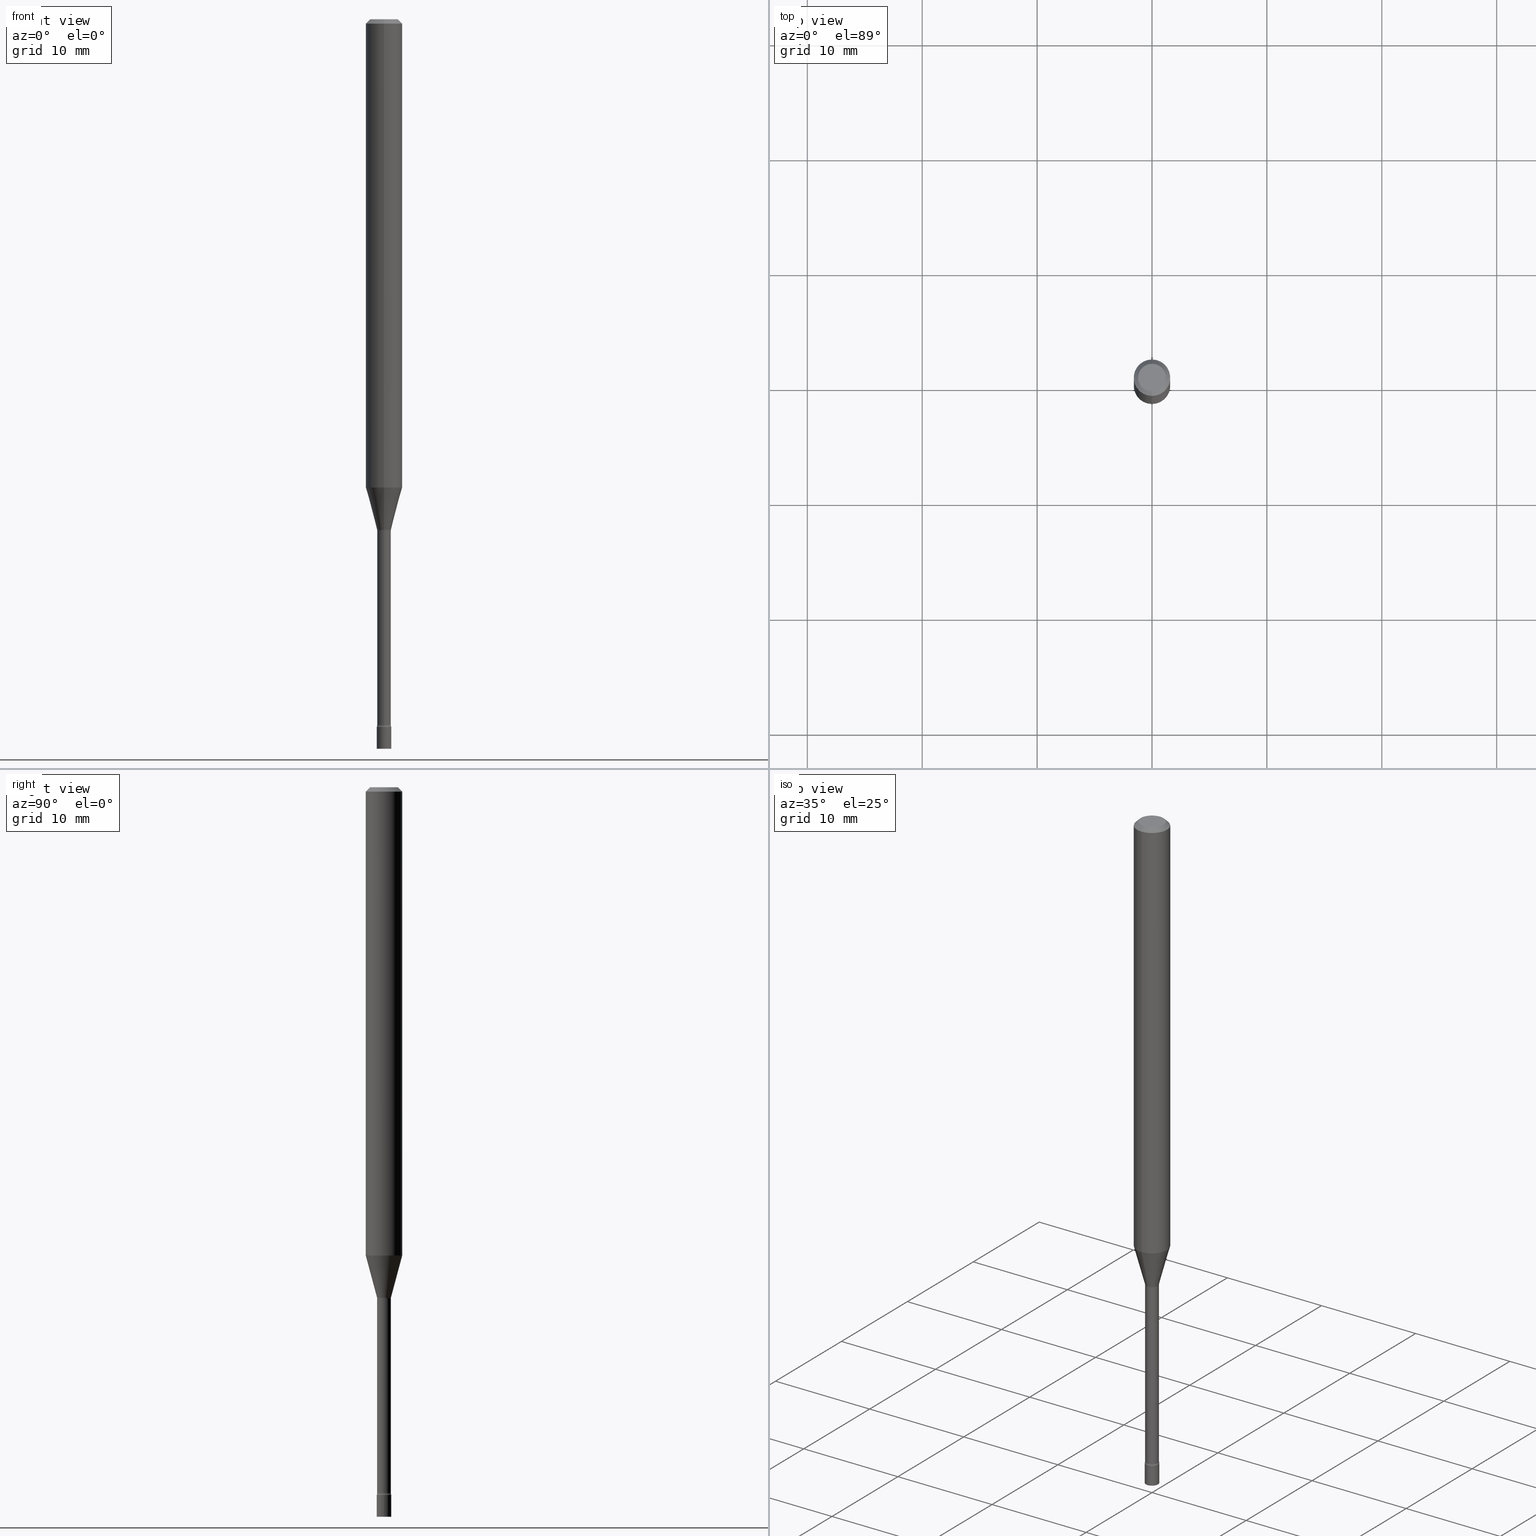
[diagram: canonical four-view strip — front | top / right | iso, engineering-drawing reading convention]
A machine part, canonical four-view strip (front | top / right | iso — engineering-drawing reading convention). The complete STEP part file that produces these views, byte-faithful:
ISO-10303-21;
HEADER;
FILE_DESCRIPTION (( 'STEP AP203' ),
    '1' );
FILE_NAME ('03626.STEP',
    '2024-03-08T22:11:53',
    ( '' ),
    ( '' ),
    'SwSTEP 2.0',
    'SolidWorks 2023',
    '' );
FILE_SCHEMA (( 'CONFIG_CONTROL_DESIGN' ));
ENDSEC;

DATA;
#1 = EDGE_CURVE ( 'NONE', #455, #389, #294, .T. ) ;
#2 = DIRECTION ( 'NONE',  ( -2.445459586643511658E-29, 3.491494541751496264E-15, 1.000000000000000000 ) ) ;
#3 = CIRCLE ( 'NONE', #73, 0.02500000000000000139 ) ;
#4 = DIRECTION ( 'NONE',  ( -2.445459586643511658E-29, 3.491494541751496264E-15, 1.000000000000000000 ) ) ;
#5 = DIRECTION ( 'NONE',  ( -2.445459586643511658E-29, 3.491494541751496264E-15, 1.000000000000000000 ) ) ;
#6 = CC_DESIGN_PERSON_AND_ORGANIZATION_ASSIGNMENT ( #111, #76, ( #307 ) ) ;
#7 = CARTESIAN_POINT ( 'NONE',  ( 4.274889566835328167E-29, -6.103455428466982164E-15, -1.748092501787273267 ) ) ;
#8 = AXIS2_PLACEMENT_3D ( 'NONE', #292, #456, #131 ) ;
#9 = CARTESIAN_POINT ( 'NONE',  ( 1.745740669422159556E-16, 0.02499999999999153247, -2.425000000000000266 ) ) ;
#10 = ORIENTED_EDGE ( 'NONE', *, *, #1, .F. ) ;
#11 = ORIENTED_EDGE ( 'NONE', *, *, #124, .F. ) ;
#12 = MECHANICAL_CONTEXT ( 'NONE', #408, 'mechanical' ) ;
#13 = ORIENTED_EDGE ( 'NONE', *, *, #200, .T. ) ;
#14 = DIRECTION ( 'NONE',  ( 2.445459586643511658E-29, -3.491494541751495870E-15, -1.000000000000000000 ) ) ;
#15 =( GEOMETRIC_REPRESENTATION_CONTEXT ( 3 ) GLOBAL_UNCERTAINTY_ASSIGNED_CONTEXT ( ( #354 ) ) GLOBAL_UNIT_ASSIGNED_CONTEXT ( ( #127, #284, #372 ) ) REPRESENTATION_CONTEXT ( 'NONE', 'WORKASPACE' ) );
#16 = CIRCLE ( 'NONE', #319, 0.02350000000000000352 ) ;
#17 = DIRECTION ( 'NONE',  ( -6.982962677686265133E-15, -1.000000000000000000, 0.000000000000000000 ) ) ;
#18 = EDGE_LOOP ( 'NONE', ( #504, #330, #416, #226 ) ) ;
#19 = FACE_OUTER_BOUND ( 'NONE', #99, .T. ) ;
#20 = EDGE_CURVE ( 'NONE', #321, #471, #44, .T. ) ;
#21 = VERTEX_POINT ( 'NONE', #28 ) ;
#22 = VERTEX_POINT ( 'NONE', #332 ) ;
#23 = CARTESIAN_POINT ( 'NONE',  ( 6.113672015462842613E-29, -8.728703347107864943E-15, -2.500000000000000000 ) ) ;
#24 = DIRECTION ( 'NONE',  ( 1.000000000000000000, -6.982962677686265922E-15, 4.876176775795935793E-29 ) ) ;
#25 = CARTESIAN_POINT ( 'NONE',  ( 4.440892098501020592E-16, 0.06249999999999995143, -0.01500000000000024751 ) ) ;
#26 = APPROVAL_ROLE ( '' ) ;
#27 = DIRECTION ( 'NONE',  ( 7.105427357601001859E-15, 1.000000000000000000, 0.000000000000000000 ) ) ;
#28 = CARTESIAN_POINT ( 'NONE',  ( -1.640996229255844069E-16, -0.02350000000000612016, -1.751974787463811190 ) ) ;
#29 = CIRCLE ( 'NONE', #212, 0.06250000000000000000 ) ;
#30 = CYLINDRICAL_SURFACE ( 'NONE', #236, 0.02500000000000000139 ) ;
#31 = CARTESIAN_POINT ( 'NONE',  ( 7.070626702492099280E-46, -1.009505725359276248E-31, -2.891328378972236202E-17 ) ) ;
#32 = PERSON_AND_ORGANIZATION ( #43, #118 ) ;
#33 = CARTESIAN_POINT ( 'NONE',  ( 3.923617679042957969E-29, -5.601928482122645795E-15, -1.604450018504814279 ) ) ;
#34 = DATE_AND_TIME ( #183, #328 ) ;
#35 = AXIS2_PLACEMENT_3D ( 'NONE', #412, #58, #220 ) ;
#36 = DATE_TIME_ROLE ( 'creation_date' ) ;
#37 = AXIS2_PLACEMENT_3D ( 'NONE', #357, #4, #192 ) ;
#38 = DIRECTION ( 'NONE',  ( -6.982962677686265922E-15, -1.000000000000000000, 0.000000000000000000 ) ) ;
#39 = EDGE_CURVE ( 'NONE', #337, #21, #467, .T. ) ;
#40 = DIRECTION ( 'NONE',  ( 7.105427357600997914E-15, 1.000000000000000000, 0.000000000000000000 ) ) ;
#41 = CIRCLE ( 'NONE', #35, 0.04749999999999999362 ) ;
#42 = CC_DESIGN_SECURITY_CLASSIFICATION ( #452, ( #307 ) ) ;
#43 = PERSON ( 'UNSPECIFIED', 'UNSPECIFIED', 'UNSPECIFIED', ('UNSPECIFIED'), ('UNSPECIFIED'), ('UNSPECIFIED') ) ;
#44 = CIRCLE ( 'NONE', #287, 0.02500000000000000139 ) ;
#45 = EDGE_LOOP ( 'NONE', ( #100, #462, #514, #249 ) ) ;
#46 = CARTESIAN_POINT ( 'NONE',  ( 0.000000000000000000, 0.000000000000000000, 0.000000000000000000 ) ) ;
#47 = EDGE_CURVE ( 'NONE', #260, #337, #80, .T. ) ;
#48 = CYLINDRICAL_SURFACE ( 'NONE', #500, 0.02350000000000004516 ) ;
#49 = AXIS2_PLACEMENT_3D ( 'NONE', #400, #120, #162 ) ;
#50 = AXIS2_PLACEMENT_3D ( 'NONE', #369, #250, #381 ) ;
#51 = CARTESIAN_POINT ( 'NONE',  ( 5.930261854998957144E-29, -8.466842246694628363E-15, -2.425000000000000266 ) ) ;
#52 = ORIENTED_EDGE ( 'NONE', *, *, #39, .F. ) ;
#53 = CARTESIAN_POINT ( 'NONE',  ( 0.000000000000000000, 0.000000000000000000, 0.000000000000000000 ) ) ;
#54 = ORIENTED_EDGE ( 'NONE', *, *, #152, .F. ) ;
#55 = CARTESIAN_POINT ( 'NONE',  ( 4.284383539561106192E-29, -6.117010407716134379E-15, -1.751974787463811190 ) ) ;
#56 = EDGE_CURVE ( 'NONE', #411, #379, #166, .T. ) ;
#57 = ORIENTED_EDGE ( 'NONE', *, *, #85, .F. ) ;
#58 = DIRECTION ( 'NONE',  ( -2.445459586643511658E-29, 3.491494541751496264E-15, 1.000000000000000000 ) ) ;
#59 = AXIS2_PLACEMENT_3D ( 'NONE', #178, #334, #505 ) ;
#60 = VECTOR ( 'NONE', #469, 39.37007874015748143 ) ;
#61 = LINE ( 'NONE', #113, #103 ) ;
#62 = ORIENTED_EDGE ( 'NONE', *, *, #198, .T. ) ;
#63 = CARTESIAN_POINT ( 'NONE',  ( 6.113672015462842613E-29, -8.728703347107864943E-15, -2.500000000000000000 ) ) ;
#64 = CARTESIAN_POINT ( 'NONE',  ( 3.840629472727447874E-16, 0.04749999999999999362, -1.947592745229184365E-16 ) ) ;
#65 = CARTESIAN_POINT ( 'NONE',  ( 0.000000000000000000, 0.000000000000000000, 0.000000000000000000 ) ) ;
#66 = ORIENTED_EDGE ( 'NONE', *, *, #290, .F. ) ;
#67 = DATE_AND_TIME ( #147, #155 ) ;
#68 = ORIENTED_EDGE ( 'NONE', *, *, #276, .T. ) ;
#69 = CYLINDRICAL_SURFACE ( 'NONE', #79, 0.06250000000000000000 ) ;
#70 = VERTEX_POINT ( 'NONE', #25 ) ;
#71 = PRODUCT_DEFINITION ( 'UNKNOWN', '', #307, #243 ) ;
#72 = CARTESIAN_POINT ( 'NONE',  ( -4.287811248607203282E-16, -0.06250000000000005551, -0.01499999999999981209 ) ) ;
#73 = AXIS2_PLACEMENT_3D ( 'NONE', #51, #322, #460 ) ;
#74 = DIRECTION ( 'NONE',  ( -6.982962677686265133E-15, -1.000000000000000000, 0.000000000000000000 ) ) ;
#75 = AXIS2_PLACEMENT_3D ( 'NONE', #340, #517, #149 ) ;
#76 = PERSON_AND_ORGANIZATION_ROLE ( 'creator' ) ;
#77 = DIRECTION ( 'NONE',  ( -6.982962677686266711E-15, -1.000000000000000000, 3.491494541751496659E-15 ) ) ;
#78 = PERSON_AND_ORGANIZATION ( #43, #118 ) ;
#79 = AXIS2_PLACEMENT_3D ( 'NONE', #229, #98, #174 ) ;
#80 = CIRCLE ( 'NONE', #150, 0.02401111260566398883 ) ;
#81 = DIRECTION ( 'NONE',  ( 1.000000000000000000, -7.105427357601001070E-15, 4.926315670231076594E-29 ) ) ;
#82 = CC_DESIGN_PERSON_AND_ORGANIZATION_ASSIGNMENT ( #117, #434, ( #452 ) ) ;
#83 = DIRECTION ( 'NONE',  ( -2.445459586643511658E-29, 3.491494541751496264E-15, 1.000000000000000000 ) ) ;
#84 = DIRECTION ( 'NONE',  ( -6.982962677686265133E-15, -1.000000000000000000, 0.000000000000000000 ) ) ;
#85 = EDGE_CURVE ( 'NONE', #368, #262, #329, .T. ) ;
#86 = DIRECTION ( 'NONE',  ( -6.982962677686265922E-15, -1.000000000000000000, 3.491494541751495870E-15 ) ) ;
#87 = CARTESIAN_POINT ( 'NONE',  ( 5.914250230797479692E-29, -8.444045655943250067E-15, -2.418461651584689509 ) ) ;
#88 = CARTESIAN_POINT ( 'NONE',  ( 4.440892098500625669E-16, 0.06250000000000000000, -2.182184088594685165E-16 ) ) ;
#89 = LOCAL_TIME ( 17, 11, 53.00000000000000000, #391 ) ;
#90 = ORIENTED_EDGE ( 'NONE', *, *, #320, .T. ) ;
#91 = VECTOR ( 'NONE', #296, 39.37007874015748143 ) ;
#92 = APPLICATION_PROTOCOL_DEFINITION ( 'international standard', 'config_control_design', 1994, #408 ) ;
#93 = ADVANCED_FACE ( 'NONE', ( #350 ), #399, .F. ) ;
#94 = EDGE_LOOP ( 'NONE', ( #450, #68 ) ) ;
#95 = DIRECTION ( 'NONE',  ( -2.445459586643511658E-29, 3.491494541751495870E-15, 1.000000000000000000 ) ) ;
#96 =( LENGTH_UNIT ( ) NAMED_UNIT ( * ) SI_UNIT ( $, .METRE. ) );
#97 = ORIENTED_EDGE ( 'NONE', *, *, #56, .F. ) ;
#98 = DIRECTION ( 'NONE',  ( -2.445459586643511658E-29, 3.491494541751496264E-15, 1.000000000000000000 ) ) ;
#99 = EDGE_LOOP ( 'NONE', ( #323, #374, #468, #378 ) ) ;
#100 = ORIENTED_EDGE ( 'NONE', *, *, #198, .F. ) ;
#101 = CARTESIAN_POINT ( 'NONE',  ( 5.930261854998957144E-29, -8.466842246694628363E-15, -2.425000000000000266 ) ) ;
#102 = CIRCLE ( 'NONE', #8, 0.06250000000000000000 ) ;
#103 = VECTOR ( 'NONE', #503, 39.37007874015748143 ) ;
#104 = ORIENTED_EDGE ( 'NONE', *, *, #206, .T. ) ;
#105 = ORIENTED_EDGE ( 'NONE', *, *, #283, .T. ) ;
#106 = DIRECTION ( 'NONE',  ( 1.000000000000000000, -7.105427357601001070E-15, 4.926315670231076594E-29 ) ) ;
#107 = EDGE_LOOP ( 'NONE', ( #11, #295, #490, #161 ) ) ;
#108 = CARTESIAN_POINT ( 'NONE',  ( 3.073492131224338832E-16, 0.02401111260565788608, -1.748092501787273267 ) ) ;
#109 = EDGE_CURVE ( 'NONE', #337, #455, #306, .T. ) ;
#110 = DIRECTION ( 'NONE',  ( -6.982962677686265133E-15, -1.000000000000000000, 0.000000000000000000 ) ) ;
#111 = PERSON_AND_ORGANIZATION ( #43, #118 ) ;
#112 = CIRCLE ( 'NONE', #257, 0.02401111260566398883 ) ;
#113 = CARTESIAN_POINT ( 'NONE',  ( 0.02500000000000000139, -1.745740669421566924E-16, 1.219044193948984123E-30 ) ) ;
#114 = VECTOR ( 'NONE', #256, 39.37007874015748143 ) ;
#115 = APPROVAL_STATUS ( 'not_yet_approved' ) ;
#116 = EDGE_CURVE ( 'NONE', #173, #130, #61, .T. ) ;
#117 = PERSON_AND_ORGANIZATION ( #43, #118 ) ;
#118 = ORGANIZATION ( 'UNSPECIFIED', 'UNSPECIFIED', '' ) ;
#119 = AXIS2_PLACEMENT_3D ( 'NONE', #265, #512, #225 ) ;
#120 = DIRECTION ( 'NONE',  ( -1.000000000000000000, 6.982962677686265922E-15, -4.883557194083112340E-29 ) ) ;
#121 = ADVANCED_FACE ( 'NONE', ( #235 ), #137, .T. ) ;
#122 = APPROVAL_DATE_TIME ( #238, #213 ) ;
#123 = CLOSED_SHELL ( 'NONE', ( #457, #376, #351, #208, #486, #475, #154, #254, #237, #241, #151, #93, #415, #454 ) ) ;
#124 = EDGE_CURVE ( 'NONE', #260, #366, #144, .T. ) ;
#125 = AXIS2_PLACEMENT_3D ( 'NONE', #23, #345, #184 ) ;
#126 = FACE_OUTER_BOUND ( 'NONE', #300, .T. ) ;
#127 =( CONVERSION_BASED_UNIT ( 'INCH', #339 ) LENGTH_UNIT ( ) NAMED_UNIT ( #406 ) );
#128 = ORIENTED_EDGE ( 'NONE', *, *, #216, .T. ) ;
#129 = CC_DESIGN_APPROVAL ( #397, ( #307 ) ) ;
#130 = VERTEX_POINT ( 'NONE', #201 ) ;
#131 = DIRECTION ( 'NONE',  ( -6.982962677686265922E-15, -1.000000000000000000, 4.370956789862821150E-15 ) ) ;
#132 = AXIS2_PLACEMENT_3D ( 'NONE', #199, #81, #40 ) ;
#133 = ORIENTED_EDGE ( 'NONE', *, *, #20, .F. ) ;
#134 = DIRECTION ( 'NONE',  ( 1.000000000000000000, -6.982962677686254878E-15, 0.000000000000000000 ) ) ;
#135 = EDGE_CURVE ( 'NONE', #70, #389, #244, .T. ) ;
#136 = DIRECTION ( 'NONE',  ( -2.445459586643511658E-29, 3.491494541751496264E-15, 1.000000000000000000 ) ) ;
#137 = PLANE ( 'NONE',  #420 ) ;
#138 = EDGE_LOOP ( 'NONE', ( #387, #90 ) ) ;
#139 = CYLINDRICAL_SURFACE ( 'NONE', #59, 0.02500000000000000139 ) ;
#140 = VERTEX_POINT ( 'NONE', #242 ) ;
#141 = ORIENTED_EDGE ( 'NONE', *, *, #272, .T. ) ;
#142 = DIRECTION ( 'NONE',  ( 6.982962677686265922E-15, 1.000000000000000000, -3.491494541751495870E-15 ) ) ;
#143 = VECTOR ( 'NONE', #311, 39.37007874015748143 ) ;
#144 = CIRCLE ( 'NONE', #132, 0.01500000000000002720 ) ;
#145 = APPLICATION_CONTEXT ( 'configuration controlled 3d designs of mechanical parts and assemblies' ) ;
#146 = EDGE_LOOP ( 'NONE', ( #336, #333, #128, #52 ) ) ;
#147 = CALENDAR_DATE ( 2024, 8, 3 ) ;
#148 = CARTESIAN_POINT ( 'NONE',  ( 5.914272527905344176E-29, -8.444013725215716224E-15, -2.418461651584689509 ) ) ;
#149 = DIRECTION ( 'NONE',  ( -6.982962677686266711E-15, -1.000000000000000000, 3.491494541751495870E-15 ) ) ;
#150 = AXIS2_PLACEMENT_3D ( 'NONE', #423, #185, #110 ) ;
#151 = ADVANCED_FACE ( 'NONE', ( #126 ), #281, .F. ) ;
#152 = EDGE_CURVE ( 'NONE', #21, #366, #16, .T. ) ;
#153 = DIRECTION ( 'NONE',  ( -2.445459586643511658E-29, 3.491494541751496264E-15, 1.000000000000000000 ) ) ;
#154 = ADVANCED_FACE ( 'NONE', ( #439 ), #393, .T. ) ;
#155 = LOCAL_TIME ( 17, 11, 53.00000000000000000, #261 ) ;
#156 = FACE_OUTER_BOUND ( 'NONE', #304, .T. ) ;
#157 = AXIS2_PLACEMENT_3D ( 'NONE', #289, #14, #142 ) ;
#158 = EDGE_LOOP ( 'NONE', ( #248, #13, #269, #507 ) ) ;
#159 = PERSON_AND_ORGANIZATION_ROLE ( 'design_owner' ) ;
#160 = CALENDAR_DATE ( 2024, 8, 3 ) ;
#161 = ORIENTED_EDGE ( 'NONE', *, *, #152, .T. ) ;
#162 = DIRECTION ( 'NONE',  ( -6.982962677686266711E-15, -1.000000000000000000, 0.000000000000000000 ) ) ;
#163 = EDGE_CURVE ( 'NONE', #455, #443, #29, .T. ) ;
#164 = DIRECTION ( 'NONE',  ( 4.937700262164548042E-15, 0.7071067811865451302, -0.7071067811865499042 ) ) ;
#165 = AXIS2_PLACEMENT_3D ( 'NONE', #508, #459, #422 ) ;
#166 = CIRCLE ( 'NONE', #194, 0.02350000000000008679 ) ;
#167 = FACE_OUTER_BOUND ( 'NONE', #18, .T. ) ;
#168 = ORIENTED_EDGE ( 'NONE', *, *, #355, .T. ) ;
#169 = ORIENTED_EDGE ( 'NONE', *, *, #200, .F. ) ;
#170 = CC_DESIGN_DATE_AND_TIME_ASSIGNMENT ( #67, #36, ( #71 ) ) ;
#171 = DIRECTION ( 'NONE',  ( -6.982962677686265133E-15, -1.000000000000000000, 0.000000000000000000 ) ) ;
#172 = TOROIDAL_SURFACE ( 'NONE', #494, 0.03850000000000000644, 0.01500000000000002373 ) ;
#173 = VERTEX_POINT ( 'NONE', #274 ) ;
#174 = DIRECTION ( 'NONE',  ( -6.982962677686265922E-15, -1.000000000000000000, 3.491494541751496264E-15 ) ) ;
#175 = CLOSED_SHELL ( 'NONE', ( #325, #516, #310, #121 ) ) ;
#176 = ORIENTED_EDGE ( 'NONE', *, *, #479, .T. ) ;
#177 = ORIENTED_EDGE ( 'NONE', *, *, #431, .T. ) ;
#178 = CARTESIAN_POINT ( 'NONE',  ( 0.000000000000000000, 0.000000000000000000, 0.000000000000000000 ) ) ;
#179 = ORIENTED_EDGE ( 'NONE', *, *, #431, .F. ) ;
#180 = EDGE_LOOP ( 'NONE', ( #498, #62, #510, #10 ) ) ;
#181 = FACE_OUTER_BOUND ( 'NONE', #361, .T. ) ;
#182 = FACE_OUTER_BOUND ( 'NONE', #94, .T. ) ;
#183 = CALENDAR_DATE ( 2024, 8, 3 ) ;
#184 = DIRECTION ( 'NONE',  ( 1.000000000000000000, -6.982962677686254878E-15, 0.000000000000000000 ) ) ;
#185 = DIRECTION ( 'NONE',  ( -2.445459586643511658E-29, 3.491494541751496264E-15, 1.000000000000000000 ) ) ;
#186 = LINE ( 'NONE', #394, #442 ) ;
#187 = FACE_OUTER_BOUND ( 'NONE', #224, .T. ) ;
#188 = EDGE_CURVE ( 'NONE', #140, #22, #437, .T. ) ;
#189 = DIRECTION ( 'NONE',  ( -2.445459586643511658E-29, 3.491494541751496264E-15, 1.000000000000000000 ) ) ;
#190 = ORIENTED_EDGE ( 'NONE', *, *, #383, .F. ) ;
#191 = DIRECTION ( 'NONE',  ( -6.982962677686265922E-15, -1.000000000000000000, 4.370956789862821150E-15 ) ) ;
#192 = DIRECTION ( 'NONE',  ( -6.982962677686265922E-15, -1.000000000000000000, 3.483106191921935554E-15 ) ) ;
#193 = TOROIDAL_SURFACE ( 'NONE', #326, 0.03850000000000008277, 0.01499999999999999424 ) ;
#194 = AXIS2_PLACEMENT_3D ( 'NONE', #264, #266, #74 ) ;
#195 = CIRCLE ( 'NONE', #341, 0.02350000000000008679 ) ;
#196 = DIRECTION ( 'NONE',  ( -2.445459586643511658E-29, 3.491494541751496264E-15, 1.000000000000000000 ) ) ;
#197 = DATE_TIME_ROLE ( 'classification_date' ) ;
#198 = EDGE_CURVE ( 'NONE', #443, #70, #445, .T. ) ;
#199 = CARTESIAN_POINT ( 'NONE',  ( 2.735589532676813637E-16, 0.03849999999999388633, -1.751974787463811190 ) ) ;
#200 = EDGE_CURVE ( 'NONE', #140, #173, #308, .T. ) ;
#201 = CARTESIAN_POINT ( 'NONE',  ( 0.02500000000000000139, -8.641416313636785031E-15, -2.425000000000000266 ) ) ;
#202 = CIRCLE ( 'NONE', #49, 0.01499999999999999424 ) ;
#203 = CARTESIAN_POINT ( 'NONE',  ( 4.440892098501015662E-16, 0.06249999999999437256, -1.604450018504814501 ) ) ;
#204 = SHAPE_DEFINITION_REPRESENTATION ( #453, #251 ) ;
#205 = MANIFOLD_SOLID_BREP ( 'Body-Move/Copy2[1]', #175 ) ;
#206 = EDGE_CURVE ( 'NONE', #389, #70, #275, .T. ) ;
#207 = CARTESIAN_POINT ( 'NONE',  ( -1.745740669420973060E-16, -0.02500000000000846684, -2.425000000000000266 ) ) ;
#208 = ADVANCED_FACE ( 'NONE', ( #181 ), #344, .T. ) ;
#209 = APPROVAL_STATUS ( 'not_yet_approved' ) ;
#210 = AXIS2_PLACEMENT_3D ( 'NONE', #358, #5, #491 ) ;
#211 = CC_DESIGN_APPROVAL ( #213, ( #452 ) ) ;
#212 = AXIS2_PLACEMENT_3D ( 'NONE', #33, #153, #191 ) ;
#213 = APPROVAL ( #424, 'UNSPECIFIED' ) ;
#214 = ORIENTED_EDGE ( 'NONE', *, *, #109, .T. ) ;
#215 = DIRECTION ( 'NONE',  ( 1.000000000000000000, 0.000000000000000000, 0.000000000000000000 ) ) ;
#216 = EDGE_CURVE ( 'NONE', #366, #21, #373, .T. ) ;
#217 = ORIENTED_EDGE ( 'NONE', *, *, #47, .T. ) ;
#218 = DIRECTION ( 'NONE',  ( -2.445459586643511658E-29, 3.491494541751496264E-15, 1.000000000000000000 ) ) ;
#219 = ORIENTED_EDGE ( 'NONE', *, *, #479, .F. ) ;
#220 = DIRECTION ( 'NONE',  ( -6.982962677686266711E-15, -1.000000000000000000, 3.491494541751496659E-15 ) ) ;
#221 = EDGE_CURVE ( 'NONE', #262, #389, #338, .T. ) ;
#222 = DIRECTION ( 'NONE',  ( -2.445459586643511658E-29, 3.491494541751496264E-15, 1.000000000000000000 ) ) ;
#223 = CARTESIAN_POINT ( 'NONE',  ( 1.745740669422178045E-16, 0.02499999999999127226, -2.500000000000000000 ) ) ;
#224 = EDGE_LOOP ( 'NONE', ( #97, #105, #501, #407 ) ) ;
#225 = DIRECTION ( 'NONE',  ( 6.982962677686265922E-15, 1.000000000000000000, -3.483106191921935554E-15 ) ) ;
#226 = ORIENTED_EDGE ( 'NONE', *, *, #109, .F. ) ;
#227 = FACE_OUTER_BOUND ( 'NONE', #425, .T. ) ;
#228 = APPROVAL_ROLE ( '' ) ;
#229 = CARTESIAN_POINT ( 'NONE',  ( 0.000000000000000000, 0.000000000000000000, 0.000000000000000000 ) ) ;
#230 = CARTESIAN_POINT ( 'NONE',  ( -4.364351673553916201E-16, -0.06250000000000000000, 2.182184088594685165E-16 ) ) ;
#231 = CARTESIAN_POINT ( 'NONE',  ( 1.669775429036238399E-16, 0.02350000000000004516, -8.205012173116032265E-17 ) ) ;
#232 = LOCAL_TIME ( 17, 11, 53.00000000000000000, #305 ) ;
#233 = DIRECTION ( 'NONE',  ( -1.000000000000000000, 6.982962677686265922E-15, -4.883557194083112340E-29 ) ) ;
#234 = SECURITY_CLASSIFICATION_LEVEL ( 'unclassified' ) ;
#235 = FACE_OUTER_BOUND ( 'NONE', #343, .T. ) ;
#236 = AXIS2_PLACEMENT_3D ( 'NONE', #324, #331, #463 ) ;
#237 = ADVANCED_FACE ( 'NONE', ( #426 ), #268, .T. ) ;
#238 = DATE_AND_TIME ( #160, #278 ) ;
#239 = DIRECTION ( 'NONE',  ( 1.839019923739597160E-15, 0.2588190451025245142, 0.9659258262890670910 ) ) ;
#240 = DIRECTION ( 'NONE',  ( -6.982962677686265133E-15, -1.000000000000000000, 0.000000000000000000 ) ) ;
#241 = ADVANCED_FACE ( 'NONE', ( #302 ), #472, .F. ) ;
#242 = CARTESIAN_POINT ( 'NONE',  ( -0.02500000000000000139, -8.420137112961222238E-15, -2.500000000000000000 ) ) ;
#243 = DESIGN_CONTEXT ( 'detailed design', #145, 'design' ) ;
#244 = CIRCLE ( 'NONE', #37, 0.06250000000000000000 ) ;
#245 = DIRECTION ( 'NONE',  ( -2.445459586643511658E-29, 3.491494541751496264E-15, 1.000000000000000000 ) ) ;
#246 = CC_DESIGN_PERSON_AND_ORGANIZATION_ASSIGNMENT ( #314, #159, ( #448 ) ) ;
#247 = AXIS2_PLACEMENT_3D ( 'NONE', #327, #377, #24 ) ;
#248 = ORIENTED_EDGE ( 'NONE', *, *, #188, .F. ) ;
#249 = ORIENTED_EDGE ( 'NONE', *, *, #135, .F. ) ;
#250 = DIRECTION ( 'NONE',  ( -2.445459586643511658E-29, 3.491494541751496264E-15, 1.000000000000000000 ) ) ;
#251 = ADVANCED_BREP_SHAPE_REPRESENTATION ( '03626', ( #205, #365, #430 ), #15 ) ;
#252 = ORIENTED_EDGE ( 'NONE', *, *, #272, .F. ) ;
#253 = CARTESIAN_POINT ( 'NONE',  ( -3.773273898774340269E-16, -0.04749999999999999362, 1.369327069434737125E-16 ) ) ;
#254 = ADVANCED_FACE ( 'NONE', ( #499 ), #69, .T. ) ;
#255 = FACE_OUTER_BOUND ( 'NONE', #180, .T. ) ;
#256 = DIRECTION ( 'NONE',  ( -2.445459586643511658E-29, 3.491494541751495870E-15, 1.000000000000000000 ) ) ;
#257 = AXIS2_PLACEMENT_3D ( 'NONE', #335, #222, #171 ) ;
#258 = ORIENTED_EDGE ( 'NONE', *, *, #320, .F. ) ;
#259 = CARTESIAN_POINT ( 'NONE',  ( -1.676687031750311194E-16, -0.02401111260567009159, -1.748092501787273267 ) ) ;
#260 = VERTEX_POINT ( 'NONE', #108 ) ;
#261 = COORDINATED_UNIVERSAL_TIME_OFFSET ( 5, 0, .BEHIND. ) ;
#262 = VERTEX_POINT ( 'NONE', #253 ) ;
#263 = DIRECTION ( 'NONE',  ( 1.000000000000000000, -6.982962677686254878E-15, 0.000000000000000000 ) ) ;
#264 = CARTESIAN_POINT ( 'NONE',  ( 5.914250230797479692E-29, -8.444045655943250067E-15, -2.418461651584689509 ) ) ;
#265 = CARTESIAN_POINT ( 'NONE',  ( 3.668189379965275037E-31, -5.237241812627254676E-17, -0.01500000000000003067 ) ) ;
#266 = DIRECTION ( 'NONE',  ( -2.445459586643511658E-29, 3.491494541751496264E-15, 1.000000000000000000 ) ) ;
#267 = PERSON_AND_ORGANIZATION_ROLE ( 'creator' ) ;
#268 = CONICAL_SURFACE ( 'NONE', #165, 0.06250000000000000000, 0.7853981633974483900 ) ;
#269 = ORIENTED_EDGE ( 'NONE', *, *, #116, .T. ) ;
#270 = PERSON_AND_ORGANIZATION_ROLE ( 'design_supplier' ) ;
#271 = PERSON_AND_ORGANIZATION ( #43, #118 ) ;
#272 = EDGE_CURVE ( 'NONE', #411, #366, #502, .T. ) ;
#273 = CARTESIAN_POINT ( 'NONE',  ( -1.640996229255687037E-16, -0.02350000000000853143, -2.418461651584689509 ) ) ;
#274 = CARTESIAN_POINT ( 'NONE',  ( 0.02500000000000000139, -8.903277414050021610E-15, -2.500000000000000000 ) ) ;
#275 = CIRCLE ( 'NONE', #50, 0.06250000000000000000 ) ;
#276 = EDGE_CURVE ( 'NONE', #22, #130, #464, .T. ) ;
#277 = EDGE_LOOP ( 'NONE', ( #474, #219, #364, #402 ) ) ;
#278 = LOCAL_TIME ( 17, 11, 53.00000000000000000, #342 ) ;
#279 = DIRECTION ( 'NONE',  ( -2.445459586643511658E-29, 3.491494541751496264E-15, 1.000000000000000000 ) ) ;
#280 = AXIS2_PLACEMENT_3D ( 'NONE', #31, #189, #77 ) ;
#281 = PLANE ( 'NONE',  #493 ) ;
#282 = LINE ( 'NONE', #316, #392 ) ;
#283 = EDGE_CURVE ( 'NONE', #411, #321, #356, .T. ) ;
#284 =( NAMED_UNIT ( * ) PLANE_ANGLE_UNIT ( ) SI_UNIT ( $, .RADIAN. ) );
#285 = ORIENTED_EDGE ( 'NONE', *, *, #221, .T. ) ;
#286 = AXIS2_PLACEMENT_3D ( 'NONE', #301, #106, #27 ) ;
#287 = AXIS2_PLACEMENT_3D ( 'NONE', #466, #382, #347 ) ;
#288 = ORIENTED_EDGE ( 'NONE', *, *, #355, .F. ) ;
#289 = CARTESIAN_POINT ( 'NONE',  ( 3.316907271900976096E-16, 0.04749999999999999362, -1.803026326280572309E-16 ) ) ;
#290 = EDGE_CURVE ( 'NONE', #173, #140, #519, .T. ) ;
#291 = ORIENTED_EDGE ( 'NONE', *, *, #221, .F. ) ;
#292 = CARTESIAN_POINT ( 'NONE',  ( 3.923617679042957969E-29, -5.601928482122645795E-15, -1.604450018504814279 ) ) ;
#293 = CYLINDRICAL_SURFACE ( 'NONE', #404, 0.06250000000000000000 ) ;
#294 = LINE ( 'NONE', #230, #114 ) ;
#295 = ORIENTED_EDGE ( 'NONE', *, *, #497, .F. ) ;
#296 = DIRECTION ( 'NONE',  ( -4.851104656540964275E-15, -0.7071067811865500152, -0.7071067811865450192 ) ) ;
#297 = CARTESIAN_POINT ( 'NONE',  ( 5.930239497610516248E-29, -8.466874263747378303E-15, -2.425000000000000266 ) ) ;
#298 = ORIENTED_EDGE ( 'NONE', *, *, #317, .F. ) ;
#299 = AXIS2_PLACEMENT_3D ( 'NONE', #297, #136, #367 ) ;
#300 = EDGE_LOOP ( 'NONE', ( #432, #133 ) ) ;
#301 = CARTESIAN_POINT ( 'NONE',  ( 2.735589532676982256E-16, 0.03849999999999163813, -2.418461651584689509 ) ) ;
#302 = FACE_OUTER_BOUND ( 'NONE', #138, .T. ) ;
#303 = CC_DESIGN_PERSON_AND_ORGANIZATION_ASSIGNMENT ( #32, #270, ( #307 ) ) ;
#304 = EDGE_LOOP ( 'NONE', ( #252, #506, #168, #496 ) ) ;
#305 = COORDINATED_UNIVERSAL_TIME_OFFSET ( 5, 0, .BEHIND. ) ;
#306 = LINE ( 'NONE', #427, #478 ) ;
#307 = PRODUCT_DEFINITION_FORMATION_WITH_SPECIFIED_SOURCE ( 'ANY', '', #448, .NOT_KNOWN. ) ;
#308 = CIRCLE ( 'NONE', #125, 0.02500000000000000139 ) ;
#309 = DATE_AND_TIME ( #520, #232 ) ;
#310 = ADVANCED_FACE ( 'NONE', ( #386 ), #30, .T. ) ;
#311 = DIRECTION ( 'NONE',  ( -2.445459586643511658E-29, 3.491494541751495870E-15, 1.000000000000000000 ) ) ;
#312 = DIRECTION ( 'NONE',  ( -1.000000000000000000, 6.982962677686265922E-15, -4.876176775795935793E-29 ) ) ;
#313 = APPROVAL_PERSON_ORGANIZATION ( #487, #438, #388 ) ;
#314 = PERSON_AND_ORGANIZATION ( #43, #118 ) ;
#315 = AXIS2_PLACEMENT_3D ( 'NONE', #55, #218, #428 ) ;
#316 = CARTESIAN_POINT ( 'NONE',  ( 4.364351673553919652E-16, 0.06249999999999995143, -0.01500000000000024751 ) ) ;
#317 = EDGE_CURVE ( 'NONE', #443, #455, #102, .T. ) ;
#318 = DIRECTION ( 'NONE',  ( -2.445459586643511658E-29, 3.491494541751496264E-15, 1.000000000000000000 ) ) ;
#319 = AXIS2_PLACEMENT_3D ( 'NONE', #413, #513, #38 ) ;
#320 = EDGE_CURVE ( 'NONE', #262, #368, #41, .T. ) ;
#321 = VERTEX_POINT ( 'NONE', #375 ) ;
#322 = DIRECTION ( 'NONE',  ( -2.445468806185136597E-29, 3.491481338843145583E-15, 1.000000000000000000 ) ) ;
#323 = ORIENTED_EDGE ( 'NONE', *, *, #290, .T. ) ;
#324 = CARTESIAN_POINT ( 'NONE',  ( 0.000000000000000000, 0.000000000000000000, 0.000000000000000000 ) ) ;
#325 = ADVANCED_FACE ( 'NONE', ( #19 ), #139, .T. ) ;
#326 = AXIS2_PLACEMENT_3D ( 'NONE', #148, #515, #476 ) ;
#327 = CARTESIAN_POINT ( 'NONE',  ( 5.930261854998957144E-29, -8.466842246694628363E-15, -2.425000000000000266 ) ) ;
#328 = LOCAL_TIME ( 17, 11, 53.00000000000000000, #482 ) ;
#329 = CIRCLE ( 'NONE', #280, 0.04749999999999999362 ) ;
#330 = ORIENTED_EDGE ( 'NONE', *, *, #383, .T. ) ;
#331 = DIRECTION ( 'NONE',  ( -2.445468806185136597E-29, 3.491481338843145583E-15, 1.000000000000000000 ) ) ;
#332 = CARTESIAN_POINT ( 'NONE',  ( -0.02500000000000000139, -8.420137112961222238E-15, -2.425000000000000266 ) ) ;
#333 = ORIENTED_EDGE ( 'NONE', *, *, #124, .T. ) ;
#334 = DIRECTION ( 'NONE',  ( -2.445468806185136597E-29, 3.491481338843145583E-15, 1.000000000000000000 ) ) ;
#335 = CARTESIAN_POINT ( 'NONE',  ( 4.274889566835328167E-29, -6.103455428466982164E-15, -1.748092501787273267 ) ) ;
#336 = ORIENTED_EDGE ( 'NONE', *, *, #47, .F. ) ;
#337 = VERTEX_POINT ( 'NONE', #259 ) ;
#338 = LINE ( 'NONE', #72, #91 ) ;
#339 = LENGTH_MEASURE_WITH_UNIT ( LENGTH_MEASURE( 0.02539999999999999897 ), #96 );
#340 = CARTESIAN_POINT ( 'NONE',  ( 5.914272527905344176E-29, -8.444013725215716224E-15, -2.418461651584689509 ) ) ;
#341 = AXIS2_PLACEMENT_3D ( 'NONE', #87, #245, #17 ) ;
#342 = COORDINATED_UNIVERSAL_TIME_OFFSET ( 5, 0, .BEHIND. ) ;
#343 = EDGE_LOOP ( 'NONE', ( #66, #169 ) ) ;
#344 = CONICAL_SURFACE ( 'NONE', #119, 0.06250000000000000000, 0.7853981633974483900 ) ;
#345 = DIRECTION ( 'NONE',  ( -2.445468806185136597E-29, 3.491481338843145583E-15, 1.000000000000000000 ) ) ;
#346 = CC_DESIGN_DATE_AND_TIME_ASSIGNMENT ( #34, #197, ( #452 ) ) ;
#347 = DIRECTION ( 'NONE',  ( -6.982962677686265133E-15, -1.000000000000000000, 0.000000000000000000 ) ) ;
#348 = APPROVAL_DATE_TIME ( #518, #438 ) ;
#349 = LINE ( 'NONE', #470, #143 ) ;
#350 = FACE_OUTER_BOUND ( 'NONE', #277, .T. ) ;
#351 = ADVANCED_FACE ( 'NONE', ( #187 ), #193, .F. ) ;
#352 = PERSON_AND_ORGANIZATION ( #43, #118 ) ;
#353 = CARTESIAN_POINT ( 'NONE',  ( 4.274889566835328167E-29, -6.103455428466982164E-15, -1.748092501787273267 ) ) ;
#354 = UNCERTAINTY_MEASURE_WITH_UNIT (LENGTH_MEASURE( 1.000000000000000082E-05 ), #127, 'distance_accuracy_value', 'NONE');
#355 = EDGE_CURVE ( 'NONE', #379, #21, #349, .T. ) ;
#356 = CIRCLE ( 'NONE', #286, 0.01499999999999999424 ) ;
#357 = CARTESIAN_POINT ( 'NONE',  ( 3.668189379965275037E-31, -5.237241812627254676E-17, -0.01500000000000003067 ) ) ;
#358 = CARTESIAN_POINT ( 'NONE',  ( 4.284399691965584978E-29, -6.116987276553583184E-15, -1.751974787463811190 ) ) ;
#359 = CARTESIAN_POINT ( 'NONE',  ( 4.284399691965584978E-29, -6.116987276553583184E-15, -1.751974787463811190 ) ) ;
#360 = DIRECTION ( 'NONE',  ( -6.982962677686265133E-15, -1.000000000000000000, 3.491494541751496264E-15 ) ) ;
#361 = EDGE_LOOP ( 'NONE', ( #258, #285, #104, #179 ) ) ;
#362 = AXIS2_PLACEMENT_3D ( 'NONE', #385, #196, #481 ) ;
#363 = AXIS2_PLACEMENT_3D ( 'NONE', #353, #2, #240 ) ;
#364 = ORIENTED_EDGE ( 'NONE', *, *, #435, .T. ) ;
#365 = MANIFOLD_SOLID_BREP ( 'Body-Move/Copy2[2]', #123 ) ;
#366 = VERTEX_POINT ( 'NONE', #473 ) ;
#367 = DIRECTION ( 'NONE',  ( -6.982962677686265133E-15, -1.000000000000000000, 0.000000000000000000 ) ) ;
#368 = VERTEX_POINT ( 'NONE', #64 ) ;
#369 = CARTESIAN_POINT ( 'NONE',  ( 3.668189379965275037E-31, -5.237241812627254676E-17, -0.01500000000000003067 ) ) ;
#370 = CC_DESIGN_PERSON_AND_ORGANIZATION_ASSIGNMENT ( #271, #267, ( #71 ) ) ;
#371 = TOROIDAL_SURFACE ( 'NONE', #210, 0.03850000000000000644, 0.01500000000000002373 ) ;
#372 =( NAMED_UNIT ( * ) SI_UNIT ( $, .STERADIAN. ) SOLID_ANGLE_UNIT ( ) );
#373 = CIRCLE ( 'NONE', #315, 0.02350000000000000352 ) ;
#374 = ORIENTED_EDGE ( 'NONE', *, *, #188, .T. ) ;
#375 = CARTESIAN_POINT ( 'NONE',  ( 1.776356839400842949E-16, 0.02499999999999152900, -2.425000000000000266 ) ) ;
#376 = ADVANCED_FACE ( 'NONE', ( #227 ), #390, .T. ) ;
#377 = DIRECTION ( 'NONE',  ( -2.438088387897960049E-29, 3.491481338843145188E-15, 1.000000000000000000 ) ) ;
#378 = ORIENTED_EDGE ( 'NONE', *, *, #116, .F. ) ;
#379 = VERTEX_POINT ( 'NONE', #273 ) ;
#380 = DIRECTION ( 'NONE',  ( -2.445468806185136597E-29, 3.491481338843145583E-15, 1.000000000000000000 ) ) ;
#381 = DIRECTION ( 'NONE',  ( -6.982962677686265922E-15, -1.000000000000000000, 3.483106191921935554E-15 ) ) ;
#382 = DIRECTION ( 'NONE',  ( -2.445459586643511658E-29, 3.491494541751496264E-15, 1.000000000000000000 ) ) ;
#383 = EDGE_CURVE ( 'NONE', #260, #443, #186, .T. ) ;
#384 = CC_DESIGN_APPROVAL ( #438, ( #71 ) ) ;
#385 = CARTESIAN_POINT ( 'NONE',  ( 0.000000000000000000, 0.000000000000000000, 0.000000000000000000 ) ) ;
#386 = FACE_OUTER_BOUND ( 'NONE', #158, .T. ) ;
#387 = ORIENTED_EDGE ( 'NONE', *, *, #85, .T. ) ;
#388 = APPROVAL_ROLE ( '' ) ;
#389 = VERTEX_POINT ( 'NONE', #403 ) ;
#390 = CYLINDRICAL_SURFACE ( 'NONE', #362, 0.02350000000000004516 ) ;
#391 = COORDINATED_UNIVERSAL_TIME_OFFSET ( 5, 0, .BEHIND. ) ;
#392 = VECTOR ( 'NONE', #164, 39.37007874015748143 ) ;
#393 = CONICAL_SURFACE ( 'NONE', #363, 0.02401111260566398883, 0.2617993877991498519 ) ;
#394 = CARTESIAN_POINT ( 'NONE',  ( 1.706092163947658798E-16, 0.02401111260565788608, -1.748092501787273267 ) ) ;
#395 = CARTESIAN_POINT ( 'NONE',  ( -0.02500000000000000139, 1.776356839400250563E-16, -1.229733772563726656E-30 ) ) ;
#396 = CARTESIAN_POINT ( 'NONE',  ( 1.723066134218837606E-16, 0.02349999999999164563, -2.418461651584689509 ) ) ;
#397 = APPROVAL ( #115, 'UNSPECIFIED' ) ;
#398 = CONICAL_SURFACE ( 'NONE', #492, 0.02401111260566398883, 0.2617993877991498519 ) ;
#399 = TOROIDAL_SURFACE ( 'NONE', #75, 0.03850000000000008277, 0.01499999999999999424 ) ;
#400 = CARTESIAN_POINT ( 'NONE',  ( -2.688440630908626895E-16, -0.03850000000000852740, -2.418461651584689509 ) ) ;
#401 = APPLICATION_PROTOCOL_DEFINITION ( 'international standard', 'config_control_design', 1994, #145 ) ;
#402 = ORIENTED_EDGE ( 'NONE', *, *, #483, .T. ) ;
#403 = CARTESIAN_POINT ( 'NONE',  ( -4.364351673553912750E-16, -0.06250000000000005551, -0.01499999999999981209 ) ) ;
#404 = AXIS2_PLACEMENT_3D ( 'NONE', #65, #409, #405 ) ;
#405 = DIRECTION ( 'NONE',  ( -6.982962677686265922E-15, -1.000000000000000000, 3.491494541751496264E-15 ) ) ;
#406 = DIMENSIONAL_EXPONENTS ( 1.000000000000000000, 0.000000000000000000, 0.000000000000000000, 0.000000000000000000, 0.000000000000000000, 0.000000000000000000, 0.000000000000000000 ) ;
#407 = ORIENTED_EDGE ( 'NONE', *, *, #435, .F. ) ;
#408 = APPLICATION_CONTEXT ( 'configuration controlled 3d designs of mechanical parts and assemblies' ) ;
#409 = DIRECTION ( 'NONE',  ( -2.445459586643511658E-29, 3.491494541751496264E-15, 1.000000000000000000 ) ) ;
#410 = PRODUCT_RELATED_PRODUCT_CATEGORY ( 'detail', '', ( #448 ) ) ;
#411 = VERTEX_POINT ( 'NONE', #396 ) ;
#412 = CARTESIAN_POINT ( 'NONE',  ( 7.070626702492099280E-46, -1.009505725359276248E-31, -2.891328378972236202E-17 ) ) ;
#413 = CARTESIAN_POINT ( 'NONE',  ( 4.284383539561106192E-29, -6.117010407716134379E-15, -1.751974787463811190 ) ) ;
#414 = DIRECTION ( 'NONE',  ( 0.000000000000000000, 0.000000000000000000, 1.000000000000000000 ) ) ;
#415 = ADVANCED_FACE ( 'NONE', ( #156 ), #48, .T. ) ;
#416 = ORIENTED_EDGE ( 'NONE', *, *, #163, .F. ) ;
#417 = DIRECTION ( 'NONE',  ( -2.445468806185136597E-29, 3.491481338843145583E-15, 1.000000000000000000 ) ) ;
#418 = AXIS2_PLACEMENT_3D ( 'NONE', #101, #417, #134 ) ;
#419 = CARTESIAN_POINT ( 'NONE',  ( -2.688440630908784174E-16, -0.03850000000000612654, -1.751974787463811190 ) ) ;
#420 = AXIS2_PLACEMENT_3D ( 'NONE', #223, #440, #312 ) ;
#421 = EDGE_LOOP ( 'NONE', ( #291, #57, #177, #461 ) ) ;
#422 = DIRECTION ( 'NONE',  ( 6.982962677686265922E-15, 1.000000000000000000, -3.483106191921935554E-15 ) ) ;
#423 = CARTESIAN_POINT ( 'NONE',  ( 4.274889566835328167E-29, -6.103455428466982164E-15, -1.748092501787273267 ) ) ;
#424 = APPROVAL_STATUS ( 'not_yet_approved' ) ;
#425 = EDGE_LOOP ( 'NONE', ( #176, #141, #54, #288 ) ) ;
#426 = FACE_OUTER_BOUND ( 'NONE', #421, .T. ) ;
#427 = CARTESIAN_POINT ( 'NONE',  ( -1.676687031750311194E-16, -0.02401111260567009159, -1.748092501787273267 ) ) ;
#428 = DIRECTION ( 'NONE',  ( -6.982962677686265922E-15, -1.000000000000000000, 0.000000000000000000 ) ) ;
#429 = DIRECTION ( 'NONE',  ( -6.982962677686265133E-15, -1.000000000000000000, 0.000000000000000000 ) ) ;
#430 = AXIS2_PLACEMENT_3D ( 'NONE', #53, #414, #215 ) ;
#431 = EDGE_CURVE ( 'NONE', #368, #70, #282, .T. ) ;
#432 = ORIENTED_EDGE ( 'NONE', *, *, #483, .F. ) ;
#433 = CALENDAR_DATE ( 2024, 8, 3 ) ;
#434 = PERSON_AND_ORGANIZATION_ROLE ( 'classification_officer' ) ;
#435 = EDGE_CURVE ( 'NONE', #379, #471, #202, .T. ) ;
#436 = VECTOR ( 'NONE', #95, 39.37007874015748143 ) ;
#437 = LINE ( 'NONE', #395, #511 ) ;
#438 = APPROVAL ( #209, 'UNSPECIFIED' ) ;
#439 = FACE_OUTER_BOUND ( 'NONE', #458, .T. ) ;
#440 = DIRECTION ( 'NONE',  ( 2.438088387897960049E-29, -3.491481338843145188E-15, -1.000000000000000000 ) ) ;
#441 = FACE_OUTER_BOUND ( 'NONE', #107, .T. ) ;
#442 = VECTOR ( 'NONE', #239, 39.37007874015748854 ) ;
#443 = VERTEX_POINT ( 'NONE', #203 ) ;
#444 = APPROVAL_PERSON_ORGANIZATION ( #352, #213, #228 ) ;
#445 = LINE ( 'NONE', #88, #60 ) ;
#446 = FACE_OUTER_BOUND ( 'NONE', #146, .T. ) ;
#447 = DIRECTION ( 'NONE',  ( -2.445459586643511658E-29, 3.491494541751495870E-15, 1.000000000000000000 ) ) ;
#448 = PRODUCT ( '03626', '03626', '', ( #12 ) ) ;
#449 = DIRECTION ( 'NONE',  ( -2.445468806185136877E-29, 3.491481338843145188E-15, 1.000000000000000000 ) ) ;
#450 = ORIENTED_EDGE ( 'NONE', *, *, #489, .T. ) ;
#451 = APPROVAL_PERSON_ORGANIZATION ( #78, #397, #26 ) ;
#452 = SECURITY_CLASSIFICATION ( '', '', #234 ) ;
#453 = PRODUCT_DEFINITION_SHAPE ( 'NONE', 'NONE',  #71 ) ;
#454 = ADVANCED_FACE ( 'NONE', ( #441 ), #371, .F. ) ;
#455 = VERTEX_POINT ( 'NONE', #495 ) ;
#456 = DIRECTION ( 'NONE',  ( -2.445459586643511658E-29, 3.491494541751496264E-15, 1.000000000000000000 ) ) ;
#457 = ADVANCED_FACE ( 'NONE', ( #446 ), #172, .F. ) ;
#458 = EDGE_LOOP ( 'NONE', ( #190, #217, #214, #298 ) ) ;
#459 = DIRECTION ( 'NONE',  ( 2.445459586643511658E-29, -3.491494541751496264E-15, -1.000000000000000000 ) ) ;
#460 = DIRECTION ( 'NONE',  ( 1.000000000000000000, -6.982962677686254878E-15, 0.000000000000000000 ) ) ;
#461 = ORIENTED_EDGE ( 'NONE', *, *, #135, .T. ) ;
#462 = ORIENTED_EDGE ( 'NONE', *, *, #317, .T. ) ;
#463 = DIRECTION ( 'NONE',  ( 1.000000000000000000, -6.982962677686267499E-15, 4.876176775795936353E-29 ) ) ;
#464 = CIRCLE ( 'NONE', #418, 0.02500000000000000139 ) ;
#465 = PLANE ( 'NONE',  #247 ) ;
#466 = CARTESIAN_POINT ( 'NONE',  ( 5.930239497610516248E-29, -8.466874263747378303E-15, -2.425000000000000266 ) ) ;
#467 = CIRCLE ( 'NONE', #485, 0.01500000000000002720 ) ;
#468 = ORIENTED_EDGE ( 'NONE', *, *, #489, .F. ) ;
#469 = DIRECTION ( 'NONE',  ( -2.445459586643511658E-29, 3.491494541751495870E-15, 1.000000000000000000 ) ) ;
#470 = CARTESIAN_POINT ( 'NONE',  ( -1.640996229256275477E-16, -0.02350000000000004516, 8.205012173116032265E-17 ) ) ;
#471 = VERTEX_POINT ( 'NONE', #207 ) ;
#472 = PLANE ( 'NONE',  #157 ) ;
#473 = CARTESIAN_POINT ( 'NONE',  ( 1.669775429036828812E-16, 0.02349999999999387995, -1.751974787463811190 ) ) ;
#474 = ORIENTED_EDGE ( 'NONE', *, *, #283, .F. ) ;
#475 = ADVANCED_FACE ( 'NONE', ( #167 ), #398, .T. ) ;
#476 = DIRECTION ( 'NONE',  ( -6.982962677686266711E-15, -1.000000000000000000, 3.491494541751495870E-15 ) ) ;
#477 = DIRECTION ( 'NONE',  ( -1.807323732225327378E-15, -0.2588190451025177974, 0.9659258262890690894 ) ) ;
#478 = VECTOR ( 'NONE', #477, 39.37007874015748143 ) ;
#479 = EDGE_CURVE ( 'NONE', #379, #411, #195, .T. ) ;
#480 = APPROVAL_DATE_TIME ( #309, #397 ) ;
#481 = DIRECTION ( 'NONE',  ( -6.982962677686265133E-15, -1.000000000000000000, 3.491494541751496264E-15 ) ) ;
#482 = COORDINATED_UNIVERSAL_TIME_OFFSET ( 5, 0, .BEHIND. ) ;
#483 = EDGE_CURVE ( 'NONE', #471, #321, #484, .T. ) ;
#484 = CIRCLE ( 'NONE', #299, 0.02500000000000000139 ) ;
#485 = AXIS2_PLACEMENT_3D ( 'NONE', #419, #233, #429 ) ;
#486 = ADVANCED_FACE ( 'NONE', ( #255 ), #293, .T. ) ;
#487 = PERSON_AND_ORGANIZATION ( #43, #118 ) ;
#488 = DIRECTION ( 'NONE',  ( -6.982962677686265922E-15, -1.000000000000000000, 3.491494541751496659E-15 ) ) ;
#489 = EDGE_CURVE ( 'NONE', #130, #22, #3, .T. ) ;
#490 = ORIENTED_EDGE ( 'NONE', *, *, #39, .T. ) ;
#491 = DIRECTION ( 'NONE',  ( -6.982962677686265922E-15, -1.000000000000000000, 3.491494541751496659E-15 ) ) ;
#492 = AXIS2_PLACEMENT_3D ( 'NONE', #7, #318, #84 ) ;
#493 = AXIS2_PLACEMENT_3D ( 'NONE', #9, #447, #86 ) ;
#494 = AXIS2_PLACEMENT_3D ( 'NONE', #359, #279, #488 ) ;
#495 = CARTESIAN_POINT ( 'NONE',  ( -4.364351673553525715E-16, -0.06250000000000562050, -1.604450018504814057 ) ) ;
#496 = ORIENTED_EDGE ( 'NONE', *, *, #216, .F. ) ;
#497 = EDGE_CURVE ( 'NONE', #337, #260, #112, .T. ) ;
#498 = ORIENTED_EDGE ( 'NONE', *, *, #163, .T. ) ;
#499 = FACE_OUTER_BOUND ( 'NONE', #45, .T. ) ;
#500 = AXIS2_PLACEMENT_3D ( 'NONE', #46, #83, #360 ) ;
#501 = ORIENTED_EDGE ( 'NONE', *, *, #20, .T. ) ;
#502 = LINE ( 'NONE', #231, #436 ) ;
#503 = DIRECTION ( 'NONE',  ( -2.445468806185136877E-29, 3.491481338843145188E-15, 1.000000000000000000 ) ) ;
#504 = ORIENTED_EDGE ( 'NONE', *, *, #497, .T. ) ;
#505 = DIRECTION ( 'NONE',  ( 1.000000000000000000, -6.982962677686267499E-15, 4.876176775795936353E-29 ) ) ;
#506 = ORIENTED_EDGE ( 'NONE', *, *, #56, .T. ) ;
#507 = ORIENTED_EDGE ( 'NONE', *, *, #276, .F. ) ;
#508 = CARTESIAN_POINT ( 'NONE',  ( 3.668189379965275037E-31, -5.237241812627254676E-17, -0.01500000000000003067 ) ) ;
#509 = AXIS2_PLACEMENT_3D ( 'NONE', #63, #380, #263 ) ;
#510 = ORIENTED_EDGE ( 'NONE', *, *, #206, .F. ) ;
#511 = VECTOR ( 'NONE', #449, 39.37007874015748143 ) ;
#512 = DIRECTION ( 'NONE',  ( 2.445459586643511658E-29, -3.491494541751496264E-15, -1.000000000000000000 ) ) ;
#513 = DIRECTION ( 'NONE',  ( -2.445459586643511658E-29, 3.491494541751496264E-15, 1.000000000000000000 ) ) ;
#514 = ORIENTED_EDGE ( 'NONE', *, *, #1, .T. ) ;
#515 = DIRECTION ( 'NONE',  ( -2.445459586643511658E-29, 3.491494541751496264E-15, 1.000000000000000000 ) ) ;
#516 = ADVANCED_FACE ( 'NONE', ( #182 ), #465, .T. ) ;
#517 = DIRECTION ( 'NONE',  ( -2.445459586643511658E-29, 3.491494541751496264E-15, 1.000000000000000000 ) ) ;
#518 = DATE_AND_TIME ( #433, #89 ) ;
#519 = CIRCLE ( 'NONE', #509, 0.02500000000000000139 ) ;
#520 = CALENDAR_DATE ( 2024, 8, 3 ) ;
ENDSEC;
END-ISO-10303-21;
